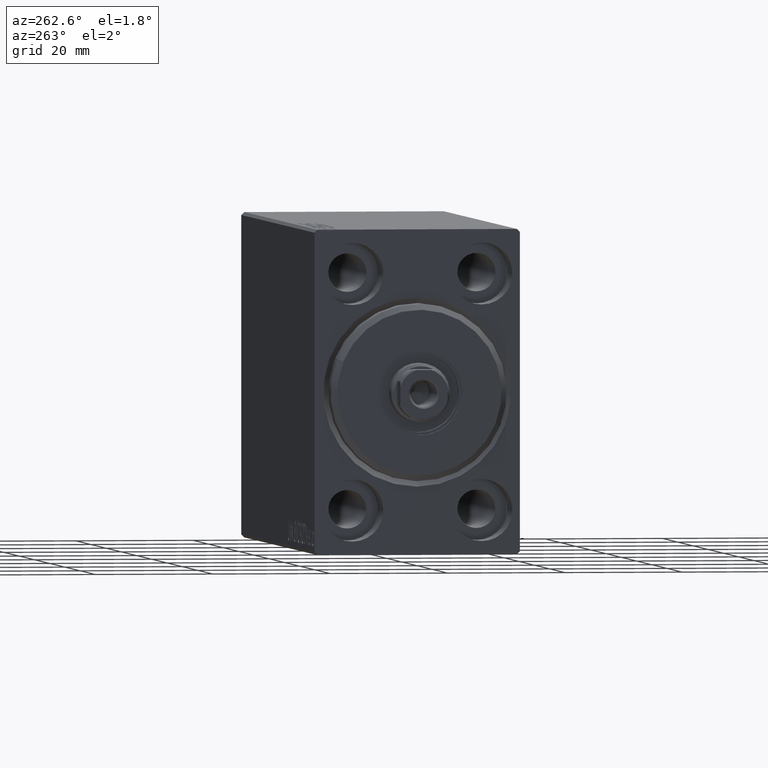
[diagram: clean part render]
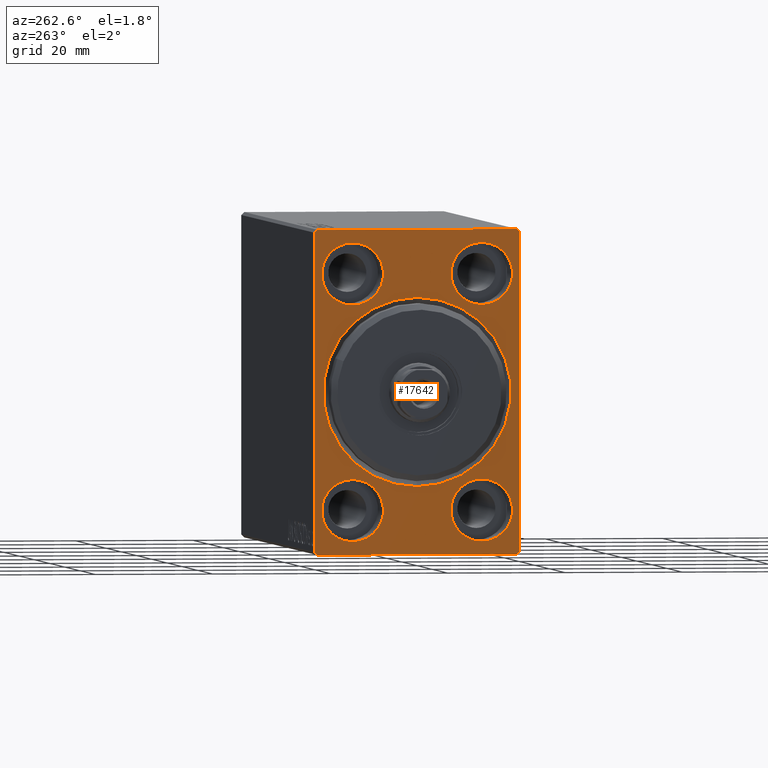
[diagram: same view with one face highlighted and labeled with its STEP entity id]
A machine part, auxiliary view. The second image highlights one B-rep face of the part: STEP entity #17642.
In plain terms, the highlighted planar face has unit normal (1, 0, 0).
Its self-contained STEP definition (entity closure, byte-faithful):
#191 = ORIENTED_EDGE ( 'NONE', *, *, #41278, .F. ) ;
#199 = ORIENTED_EDGE ( 'NONE', *, *, #23129, .F. ) ;
#536 = CARTESIAN_POINT ( 'NONE',  ( 0.000000000000000000, 11.00000000000000355, -20.00000000000000000 ) ) ;
#684 = CARTESIAN_POINT ( 'NONE',  ( 0.000000000000000000, -17.00000000000000000, 27.49999999999999645 ) ) ;
#757 = CIRCLE ( 'NONE', #11404, 16.00000000000002842 ) ;
#763 = CARTESIAN_POINT ( 'NONE',  ( 0.000000000000000000, 17.00000000000001421, 27.50000000000000355 ) ) ;
#820 = CIRCLE ( 'NONE', #21407, 5.250000000000000888 ) ;
#1570 = DIRECTION ( 'NONE',  ( -1.000000000000000000, 0.000000000000000000, 0.000000000000000000 ) ) ;
#1692 = FACE_OUTER_BOUND ( 'NONE', #18716, .T. ) ;
#2436 = VERTEX_POINT ( 'NONE', #29806 ) ;
#2961 = VERTEX_POINT ( 'NONE', #4873 ) ;
#3294 = DIRECTION ( 'NONE',  ( -1.000000000000000000, 0.000000000000000000, 0.000000000000000000 ) ) ;
#3989 = CARTESIAN_POINT ( 'NONE',  ( 0.000000000000000000, 11.00000000000000355, 25.25000000000000000 ) ) ;
#4059 = VERTEX_POINT ( 'NONE', #4815 ) ;
#4200 = CIRCLE ( 'NONE', #16959, 5.250000000000000888 ) ;
#4646 = EDGE_CURVE ( 'NONE', #33582, #15577, #33035, .T. ) ;
#4695 = CARTESIAN_POINT ( 'NONE',  ( 0.000000000000000000, 17.50000000000000000, 27.00000000000001776 ) ) ;
#4815 = CARTESIAN_POINT ( 'NONE',  ( 0.000000000000000000, -11.00000000000000355, 25.25000000000000000 ) ) ;
#4873 = CARTESIAN_POINT ( 'NONE',  ( 0.000000000000000000, 11.00000000000000355, 14.75000000000000000 ) ) ;
#4961 = CARTESIAN_POINT ( 'NONE',  ( 0.000000000000000000, 17.00000000000001421, 27.50000000000000355 ) ) ;
#5042 = VECTOR ( 'NONE', #19100, 1000.000000000000114 ) ;
#5588 = CIRCLE ( 'NONE', #6291, 5.250000000000000888 ) ;
#5774 = CARTESIAN_POINT ( 'NONE',  ( 0.000000000000000000, -17.50000000000000000, 26.99999999999999645 ) ) ;
#6107 = VECTOR ( 'NONE', #8637, 1000.000000000000000 ) ;
#6291 = AXIS2_PLACEMENT_3D ( 'NONE', #14462, #1570, #34887 ) ;
#6355 = LINE ( 'NONE', #11198, #39041 ) ;
#6576 = VERTEX_POINT ( 'NONE', #16396 ) ;
#7054 = DIRECTION ( 'NONE',  ( -0.000000000000000000, -0.7071067811865378028, 0.7071067811865573427 ) ) ;
#7880 = AXIS2_PLACEMENT_3D ( 'NONE', #536, #13856, #24753 ) ;
#7971 = EDGE_CURVE ( 'NONE', #25668, #42412, #28203, .T. ) ;
#8357 = DIRECTION ( 'NONE',  ( 0.000000000000000000, 0.000000000000000000, 1.000000000000000000 ) ) ;
#8557 = PLANE ( 'NONE',  #37520 ) ;
#8637 = DIRECTION ( 'NONE',  ( 0.000000000000000000, -1.000000000000000000, -1.982541115402065110E-16 ) ) ;
#9132 = ORIENTED_EDGE ( 'NONE', *, *, #28991, .F. ) ;
#9559 = DIRECTION ( 'NONE',  ( 0.000000000000000000, -1.261617073437677752E-16, 1.000000000000000000 ) ) ;
#9916 = CIRCLE ( 'NONE', #39657, 5.250000000000000888 ) ;
#9939 = ORIENTED_EDGE ( 'NONE', *, *, #22045, .F. ) ;
#10156 = CARTESIAN_POINT ( 'NONE',  ( 0.000000000000000000, -17.50000000000000000, 27.49999999999999645 ) ) ;
#10330 = DIRECTION ( 'NONE',  ( 0.000000000000000000, 0.000000000000000000, 1.000000000000000000 ) ) ;
#10453 = ORIENTED_EDGE ( 'NONE', *, *, #39295, .T. ) ;
#10758 = DIRECTION ( 'NONE',  ( 0.000000000000000000, 1.000000000000000000, 0.000000000000000000 ) ) ;
#11198 = CARTESIAN_POINT ( 'NONE',  ( 0.000000000000000000, -17.50000000000000000, -27.50000000000000355 ) ) ;
#11404 = AXIS2_PLACEMENT_3D ( 'NONE', #18128, #23907, #34780 ) ;
#11564 = CARTESIAN_POINT ( 'NONE',  ( 0.000000000000000000, 1.959434878635768681E-15, -16.00000000000002842 ) ) ;
#12326 = EDGE_LOOP ( 'NONE', ( #41356, #35915 ) ) ;
#12598 = CARTESIAN_POINT ( 'NONE',  ( 0.000000000000000000, 17.50000000000000000, 27.50000000000000355 ) ) ;
#13206 = VERTEX_POINT ( 'NONE', #22943 ) ;
#13239 = EDGE_CURVE ( 'NONE', #2961, #24437, #35389, .T. ) ;
#13856 = DIRECTION ( 'NONE',  ( -1.000000000000000000, 0.000000000000000000, 0.000000000000000000 ) ) ;
#14286 = ORIENTED_EDGE ( 'NONE', *, *, #29247, .F. ) ;
#14462 = CARTESIAN_POINT ( 'NONE',  ( 0.000000000000000000, 11.00000000000000355, -20.00000000000000000 ) ) ;
#14775 = EDGE_CURVE ( 'NONE', #33085, #15577, #33534, .T. ) ;
#14838 = ORIENTED_EDGE ( 'NONE', *, *, #22286, .F. ) ;
#15577 = VERTEX_POINT ( 'NONE', #684 ) ;
#15597 = LINE ( 'NONE', #4961, #25616 ) ;
#15907 = EDGE_LOOP ( 'NONE', ( #9939, #199 ) ) ;
#16020 = DIRECTION ( 'NONE',  ( -0.000000000000000000, 0.7071067811865474617, -0.7071067811865474617 ) ) ;
#16264 = CARTESIAN_POINT ( 'NONE',  ( 0.000000000000000000, 11.00000000000000355, 20.00000000000000000 ) ) ;
#16396 = CARTESIAN_POINT ( 'NONE',  ( 0.000000000000000000, -17.50000000000000000, -27.00000000000000355 ) ) ;
#16630 = ORIENTED_EDGE ( 'NONE', *, *, #27494, .F. ) ;
#16705 = VERTEX_POINT ( 'NONE', #34609 ) ;
#16959 = AXIS2_PLACEMENT_3D ( 'NONE', #20857, #3294, #41034 ) ;
#16984 = VERTEX_POINT ( 'NONE', #36670 ) ;
#17093 = AXIS2_PLACEMENT_3D ( 'NONE', #27746, #27515, #43918 ) ;
#17124 = VERTEX_POINT ( 'NONE', #4695 ) ;
#17642 = ADVANCED_FACE ( 'NONE', ( #35432, #31678, #42504, #38970, #32314, #1692 ), #8557, .F. ) ;
#17771 = VECTOR ( 'NONE', #7054, 1000.000000000000000 ) ;
#17941 = ORIENTED_EDGE ( 'NONE', *, *, #4646, .F. ) ;
#18128 = CARTESIAN_POINT ( 'NONE',  ( 0.000000000000000000, 0.000000000000000000, 0.000000000000000000 ) ) ;
#18156 = DIRECTION ( 'NONE',  ( -1.000000000000000000, 0.000000000000000000, 0.000000000000000000 ) ) ;
#18278 = EDGE_LOOP ( 'NONE', ( #9132, #14838 ) ) ;
#18347 = DIRECTION ( 'NONE',  ( 0.000000000000000000, 0.000000000000000000, -1.000000000000000000 ) ) ;
#18572 = CARTESIAN_POINT ( 'NONE',  ( 0.000000000000000000, 0.000000000000000000, 0.000000000000000000 ) ) ;
#18716 = EDGE_LOOP ( 'NONE', ( #26759, #21119, #17941, #10453, #191, #42471, #37983, #35831 ) ) ;
#19100 = DIRECTION ( 'NONE',  ( 0.000000000000000000, -0.7071067811865474617, -0.7071067811865474617 ) ) ;
#19406 = VERTEX_POINT ( 'NONE', #37952 ) ;
#19544 = DIRECTION ( 'NONE',  ( -0.000000000000000000, 0.7071067811865474617, 0.7071067811865474617 ) ) ;
#20278 = EDGE_CURVE ( 'NONE', #42412, #25668, #757, .T. ) ;
#20857 = CARTESIAN_POINT ( 'NONE',  ( 0.000000000000000000, -11.00000000000000355, 20.00000000000000000 ) ) ;
#21119 = ORIENTED_EDGE ( 'NONE', *, *, #14775, .T. ) ;
#21197 = DIRECTION ( 'NONE',  ( 1.000000000000000000, 0.000000000000000000, 0.000000000000000000 ) ) ;
#21407 = AXIS2_PLACEMENT_3D ( 'NONE', #36884, #26246, #26469 ) ;
#21467 = EDGE_CURVE ( 'NONE', #16984, #2436, #6355, .T. ) ;
#22045 = EDGE_CURVE ( 'NONE', #13206, #16705, #34827, .T. ) ;
#22286 = EDGE_CURVE ( 'NONE', #40004, #22505, #33379, .T. ) ;
#22295 = DIRECTION ( 'NONE',  ( -1.000000000000000000, 0.000000000000000000, 0.000000000000000000 ) ) ;
#22503 = DIRECTION ( 'NONE',  ( 0.000000000000000000, 0.000000000000000000, 1.000000000000000000 ) ) ;
#22505 = VERTEX_POINT ( 'NONE', #24257 ) ;
#22674 = LINE ( 'NONE', #23109, #28470 ) ;
#22943 = CARTESIAN_POINT ( 'NONE',  ( 0.000000000000000000, -11.00000000000000355, -14.75000000000000000 ) ) ;
#23109 = CARTESIAN_POINT ( 'NONE',  ( 0.000000000000000000, 17.50000000000000711, -27.50000000000000355 ) ) ;
#23129 = EDGE_CURVE ( 'NONE', #16705, #13206, #820, .T. ) ;
#23907 = DIRECTION ( 'NONE',  ( 1.000000000000000000, 0.000000000000000000, 0.000000000000000000 ) ) ;
#24119 = EDGE_LOOP ( 'NONE', ( #38567, #40239 ) ) ;
#24257 = CARTESIAN_POINT ( 'NONE',  ( 0.000000000000000000, 11.00000000000000355, -14.75000000000000000 ) ) ;
#24437 = VERTEX_POINT ( 'NONE', #3989 ) ;
#24753 = DIRECTION ( 'NONE',  ( 0.000000000000000000, 0.000000000000000000, 1.000000000000000000 ) ) ;
#24982 = VECTOR ( 'NONE', #33905, 1000.000000000000000 ) ;
#25616 = VECTOR ( 'NONE', #16020, 1000.000000000000114 ) ;
#25668 = VERTEX_POINT ( 'NONE', #41376 ) ;
#26246 = DIRECTION ( 'NONE',  ( -1.000000000000000000, 0.000000000000000000, 0.000000000000000000 ) ) ;
#26469 = DIRECTION ( 'NONE',  ( 0.000000000000000000, 0.000000000000000000, 1.000000000000000000 ) ) ;
#26606 = CARTESIAN_POINT ( 'NONE',  ( 0.000000000000000000, -17.00000000000001421, -27.50000000000000355 ) ) ;
#26759 = ORIENTED_EDGE ( 'NONE', *, *, #36433, .F. ) ;
#27494 = EDGE_CURVE ( 'NONE', #4059, #19406, #28573, .T. ) ;
#27515 = DIRECTION ( 'NONE',  ( -1.000000000000000000, 0.000000000000000000, 0.000000000000000000 ) ) ;
#27746 = CARTESIAN_POINT ( 'NONE',  ( 0.000000000000000000, -11.00000000000000355, -20.00000000000000000 ) ) ;
#28203 = CIRCLE ( 'NONE', #43009, 16.00000000000002842 ) ;
#28470 = VECTOR ( 'NONE', #9559, 1000.000000000000000 ) ;
#28573 = CIRCLE ( 'NONE', #32800, 5.250000000000000888 ) ;
#28580 = CARTESIAN_POINT ( 'NONE',  ( 0.000000000000000000, 11.00000000000000355, 20.00000000000000000 ) ) ;
#28991 = EDGE_CURVE ( 'NONE', #22505, #40004, #5588, .T. ) ;
#29247 = EDGE_CURVE ( 'NONE', #19406, #4059, #4200, .T. ) ;
#29806 = CARTESIAN_POINT ( 'NONE',  ( 0.000000000000000000, 16.99999999999999289, -27.50000000000000355 ) ) ;
#30695 = EDGE_CURVE ( 'NONE', #24437, #2961, #9916, .T. ) ;
#31336 = VERTEX_POINT ( 'NONE', #31749 ) ;
#31462 = DIRECTION ( 'NONE',  ( 1.000000000000000000, 0.000000000000000000, 0.000000000000000000 ) ) ;
#31678 = FACE_BOUND ( 'NONE', #18278, .T. ) ;
#31749 = CARTESIAN_POINT ( 'NONE',  ( 0.000000000000000000, 17.50000000000000711, -26.99999999999998934 ) ) ;
#32314 = FACE_BOUND ( 'NONE', #15907, .T. ) ;
#32531 = EDGE_CURVE ( 'NONE', #16984, #6576, #37463, .T. ) ;
#32800 = AXIS2_PLACEMENT_3D ( 'NONE', #34314, #33864, #10330 ) ;
#33035 = LINE ( 'NONE', #12598, #6107 ) ;
#33085 = VERTEX_POINT ( 'NONE', #41094 ) ;
#33379 = CIRCLE ( 'NONE', #7880, 5.250000000000000888 ) ;
#33534 = LINE ( 'NONE', #5774, #39565 ) ;
#33582 = VERTEX_POINT ( 'NONE', #763 ) ;
#33864 = DIRECTION ( 'NONE',  ( -1.000000000000000000, 0.000000000000000000, 0.000000000000000000 ) ) ;
#33905 = DIRECTION ( 'NONE',  ( 0.000000000000000000, 0.000000000000000000, -1.000000000000000000 ) ) ;
#34314 = CARTESIAN_POINT ( 'NONE',  ( 0.000000000000000000, -11.00000000000000355, 20.00000000000000000 ) ) ;
#34510 = DIRECTION ( 'NONE',  ( 0.000000000000000000, 0.000000000000000000, -1.000000000000000000 ) ) ;
#34609 = CARTESIAN_POINT ( 'NONE',  ( 0.000000000000000000, -11.00000000000000355, -25.25000000000000000 ) ) ;
#34780 = DIRECTION ( 'NONE',  ( 0.000000000000000000, 0.000000000000000000, -1.000000000000000000 ) ) ;
#34793 = EDGE_CURVE ( 'NONE', #31336, #2436, #36169, .T. ) ;
#34827 = CIRCLE ( 'NONE', #17093, 5.250000000000000888 ) ;
#34887 = DIRECTION ( 'NONE',  ( 0.000000000000000000, 0.000000000000000000, 1.000000000000000000 ) ) ;
#35389 = CIRCLE ( 'NONE', #41056, 5.250000000000000888 ) ;
#35432 = FACE_BOUND ( 'NONE', #24119, .T. ) ;
#35831 = ORIENTED_EDGE ( 'NONE', *, *, #32531, .T. ) ;
#35915 = ORIENTED_EDGE ( 'NONE', *, *, #13239, .F. ) ;
#36169 = LINE ( 'NONE', #39291, #5042 ) ;
#36433 = EDGE_CURVE ( 'NONE', #33085, #6576, #40999, .T. ) ;
#36670 = CARTESIAN_POINT ( 'NONE',  ( 0.000000000000000000, -17.00000000000001421, -27.50000000000000355 ) ) ;
#36884 = CARTESIAN_POINT ( 'NONE',  ( 0.000000000000000000, -11.00000000000000355, -20.00000000000000000 ) ) ;
#37463 = LINE ( 'NONE', #26606, #17771 ) ;
#37520 = AXIS2_PLACEMENT_3D ( 'NONE', #18572, #31462, #18347 ) ;
#37952 = CARTESIAN_POINT ( 'NONE',  ( 0.000000000000000000, -11.00000000000000355, 14.75000000000000000 ) ) ;
#37983 = ORIENTED_EDGE ( 'NONE', *, *, #21467, .F. ) ;
#38052 = CARTESIAN_POINT ( 'NONE',  ( 0.000000000000000000, 11.00000000000000355, -25.25000000000000000 ) ) ;
#38567 = ORIENTED_EDGE ( 'NONE', *, *, #7971, .T. ) ;
#38970 = FACE_BOUND ( 'NONE', #12326, .T. ) ;
#39041 = VECTOR ( 'NONE', #10758, 1000.000000000000000 ) ;
#39064 = EDGE_LOOP ( 'NONE', ( #16630, #14286 ) ) ;
#39291 = CARTESIAN_POINT ( 'NONE',  ( 0.000000000000000000, 17.50000000000000711, -26.99999999999998934 ) ) ;
#39295 = EDGE_CURVE ( 'NONE', #33582, #17124, #15597, .T. ) ;
#39565 = VECTOR ( 'NONE', #19544, 1000.000000000000114 ) ;
#39657 = AXIS2_PLACEMENT_3D ( 'NONE', #16264, #22295, #22503 ) ;
#40004 = VERTEX_POINT ( 'NONE', #38052 ) ;
#40239 = ORIENTED_EDGE ( 'NONE', *, *, #20278, .T. ) ;
#40999 = LINE ( 'NONE', #10156, #24982 ) ;
#41034 = DIRECTION ( 'NONE',  ( 0.000000000000000000, 0.000000000000000000, 1.000000000000000000 ) ) ;
#41056 = AXIS2_PLACEMENT_3D ( 'NONE', #28580, #18156, #8357 ) ;
#41094 = CARTESIAN_POINT ( 'NONE',  ( 0.000000000000000000, -17.50000000000000000, 26.99999999999999645 ) ) ;
#41163 = CARTESIAN_POINT ( 'NONE',  ( 0.000000000000000000, 0.000000000000000000, 0.000000000000000000 ) ) ;
#41278 = EDGE_CURVE ( 'NONE', #31336, #17124, #22674, .T. ) ;
#41356 = ORIENTED_EDGE ( 'NONE', *, *, #30695, .F. ) ;
#41376 = CARTESIAN_POINT ( 'NONE',  ( 0.000000000000000000, 0.000000000000000000, 16.00000000000002842 ) ) ;
#42412 = VERTEX_POINT ( 'NONE', #11564 ) ;
#42471 = ORIENTED_EDGE ( 'NONE', *, *, #34793, .T. ) ;
#42504 = FACE_BOUND ( 'NONE', #39064, .T. ) ;
#43009 = AXIS2_PLACEMENT_3D ( 'NONE', #41163, #21197, #34510 ) ;
#43918 = DIRECTION ( 'NONE',  ( 0.000000000000000000, 0.000000000000000000, 1.000000000000000000 ) ) ;